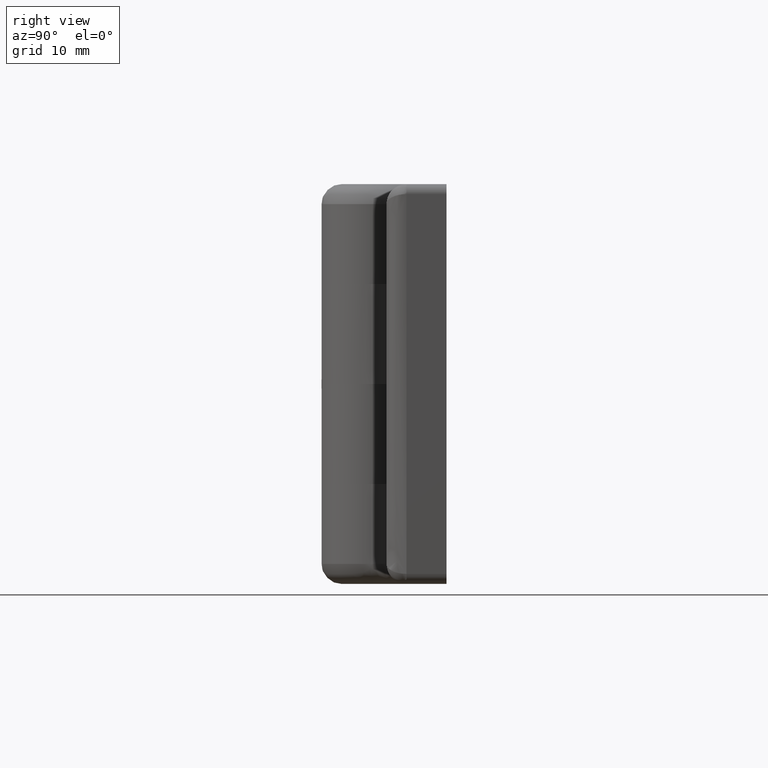
[diagram: clean part render]
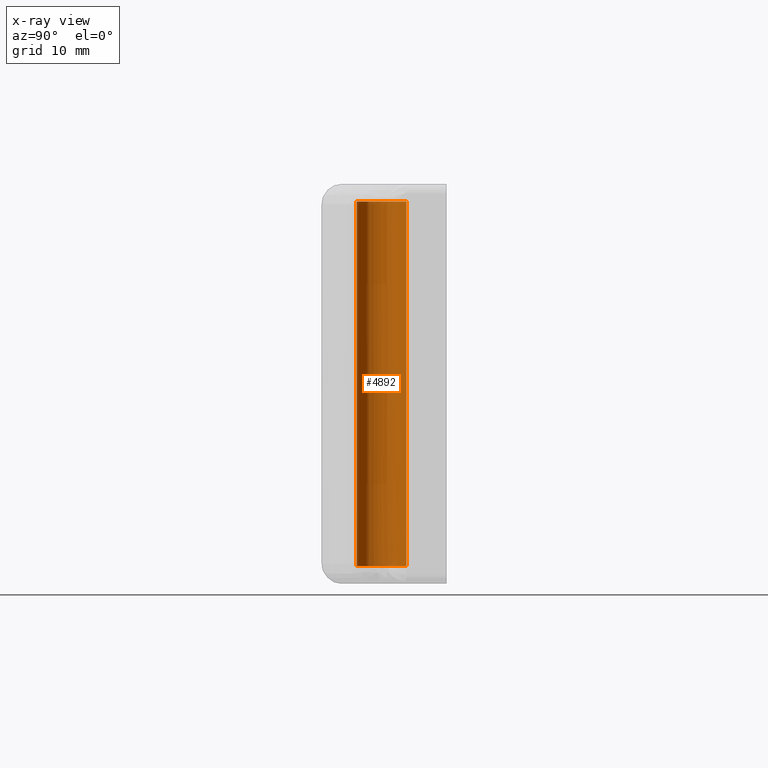
[diagram: x-ray — body ghosted, one internal face saturated and labeled with its STEP entity id]
A machine part, right view, then the same camera in x-ray: the body is ghosted and one INTERNAL B-rep face — a face not visible from any outside direction — is saturated and labeled: STEP entity #4892.
In plain terms, the highlighted face is a freeform B-spline surface patch.
Its self-contained STEP definition (entity closure, byte-faithful):
#4790=CARTESIAN_POINT('',(0.295085586641896,-2.482523815909166,39.162500000000009));
#4791=CARTESIAN_POINT('',(0.224036821594944,-2.490969038621514,39.162500000000009));
#4792=CARTESIAN_POINT('',(0.152621348837143,-2.495336996054667,39.162500000000009));
#4793=CARTESIAN_POINT('',(-2.342715647217524,-2.647958344891809,39.162500000000001));
#4794=CARTESIAN_POINT('',(-2.495336996054667,-0.152621348837143,39.162500000000009));
#4795=CARTESIAN_POINT('',(-2.647958344891809,2.342715647217524,39.162500000000001));
#4796=CARTESIAN_POINT('',(-0.152621348837143,2.495336996054667,39.162500000000009));
#4797=CARTESIAN_POINT('',(0.295085586641896,-2.482523815909166,0.814687499999920));
#4798=CARTESIAN_POINT('',(0.224036821594944,-2.490969038621514,0.814687499999920));
#4799=CARTESIAN_POINT('',(0.152621348837143,-2.495336996054667,0.814687499999920));
#4800=CARTESIAN_POINT('',(-2.342715647217524,-2.647958344891809,0.814687499999920));
#4801=CARTESIAN_POINT('',(-2.495336996054667,-0.152621348837143,0.814687499999920));
#4802=CARTESIAN_POINT('',(-2.647958344891809,2.342715647217524,0.814687499999920));
#4803=CARTESIAN_POINT('',(-0.152621348837143,2.495336996054667,0.814687499999920));
#4811=(BOUNDED_SURFACE()B_SPLINE_SURFACE(2,1,((#4790,#4797),(#4791,#4798),(#4792,#4799),(#4793,#4800),(#4794,#4801),(#4795,#4802),(#4796,#4803)),.UNSPECIFIED.,.F.,.F.,.U.)B_SPLINE_SURFACE_WITH_KNOTS((3,2,2,3),(2,2),(0.0,0.165685424949238,4.307821048680188,8.449956672411137),(0.0,38.347812500000103),.UNSPECIFIED.)GEOMETRIC_REPRESENTATION_ITEM()RATIONAL_B_SPLINE_SURFACE(((0.977505800795127,0.977505800795127),(0.988284271247462,0.988284271247462),(1.0,1.0),(0.707106781186548,0.707106781186548),(1.0,1.0),(0.707106781186548,0.707106781186548),(1.0,1.0)))REPRESENTATION_ITEM('')SURFACE());
#4812=CARTESIAN_POINT('',(0.295085586715337,-2.482523815900436,1.749999999999919));
#4813=VERTEX_POINT('',#4812);
#4814=CARTESIAN_POINT('',(-2.500000000000000,0.0,1.749999999999920));
#4815=VERTEX_POINT('',#4814);
#4816=CARTESIAN_POINT('',(0.295085586715337,-2.482523815900436,1.749999999999919));
#4817=CARTESIAN_POINT('',(0.148060299203993,-2.500000000000000,1.749999999999920));
#4818=CARTESIAN_POINT('',(0.0,-2.500000000000000,1.749999999999920));
#4819=CARTESIAN_POINT('',(-2.500000000000000,-2.500000000000000,1.749999999999921));
#4820=CARTESIAN_POINT('',(-2.500000000000000,0.0,1.749999999999920));
#4828=(BOUNDED_CURVE()B_SPLINE_CURVE(2,(#4816,#4817,#4818,#4819,#4820),.UNSPECIFIED.,.F.,.U.)B_SPLINE_CURVE_WITH_KNOTS((3,2,3),(0.229562473505645,0.250000000000000,0.500000000000000),.UNSPECIFIED.)CURVE()GEOMETRIC_REPRESENTATION_ITEM()RATIONAL_B_SPLINE_CURVE((0.956026754168287,0.976055948321932,1.0,0.707106781186548,1.0))REPRESENTATION_ITEM(''));
#4829=EDGE_CURVE('',#4813,#4815,#4828,.T.);
#4830=ORIENTED_EDGE('',*,*,#4829,.F.);
#4831=CARTESIAN_POINT('',(0.295085586715337,-2.482523815900436,38.250000000000000));
#4832=VERTEX_POINT('',#4831);
#4833=CARTESIAN_POINT('',(0.295085586715337,-2.482523815900436,38.250000000000000));
#4834=CARTESIAN_POINT('',(0.295085586715337,-2.482523815900436,1.749999999999919));
#4835=QUASI_UNIFORM_CURVE('',1,(#4833,#4834),.UNSPECIFIED.,.F.,.U.);
#4836=EDGE_CURVE('',#4832,#4813,#4835,.T.);
#4837=ORIENTED_EDGE('',*,*,#4836,.F.);
#4838=CARTESIAN_POINT('',(-2.500000000000000,0.0,38.250000000000000));
#4839=VERTEX_POINT('',#4838);
#4840=CARTESIAN_POINT('',(0.295085586715337,-2.482523815900436,38.250000000000000));
#4841=CARTESIAN_POINT('',(0.148060299203993,-2.500000000000000,38.250000000000007));
#4842=CARTESIAN_POINT('',(0.0,-2.500000000000000,38.250000000000000));
#4843=CARTESIAN_POINT('',(-2.500000000000000,-2.500000000000000,38.250000000000007));
#4844=CARTESIAN_POINT('',(-2.500000000000000,0.0,38.250000000000000));
#4852=(BOUNDED_CURVE()B_SPLINE_CURVE(2,(#4840,#4841,#4842,#4843,#4844),.UNSPECIFIED.,.F.,.U.)B_SPLINE_CURVE_WITH_KNOTS((3,2,3),(0.229562473505645,0.250000000000000,0.500000000000000),.UNSPECIFIED.)CURVE()GEOMETRIC_REPRESENTATION_ITEM()RATIONAL_B_SPLINE_CURVE((0.956026754168287,0.976055948321932,1.0,0.707106781186548,1.0))REPRESENTATION_ITEM(''));
#4853=EDGE_CURVE('',#4832,#4839,#4852,.T.);
#4854=ORIENTED_EDGE('',*,*,#4853,.T.);
#4855=CARTESIAN_POINT('',(-0.152619134337840,2.495337131497274,38.250000000000000));
#4856=VERTEX_POINT('',#4855);
#4857=CARTESIAN_POINT('',(-2.500000000000000,0.0,38.250000000000000));
#4858=CARTESIAN_POINT('',(-2.500000000000001,2.351767258250872,38.250000000000007));
#4859=CARTESIAN_POINT('',(-0.152619134337840,2.495337131497274,38.250000000000007));
#4867=(BOUNDED_CURVE()B_SPLINE_CURVE(2,(#4857,#4858,#4859),.UNSPECIFIED.,.F.,.U.)B_SPLINE_CURVE_WITH_KNOTS((3,3),(0.500000000000000,0.739333115369498),.UNSPECIFIED.)CURVE()GEOMETRIC_REPRESENTATION_ITEM()RATIONAL_B_SPLINE_CURVE((1.0,0.719603813883106,0.976072369854866))REPRESENTATION_ITEM(''));
#4868=EDGE_CURVE('',#4839,#4856,#4867,.T.);
#4869=ORIENTED_EDGE('',*,*,#4868,.T.);
#4870=CARTESIAN_POINT('',(-0.152619106598168,2.495337133193855,1.749999999999915));
#4871=VERTEX_POINT('',#4870);
#4872=CARTESIAN_POINT('',(-0.152619134337840,2.495337131497274,38.250000000000000));
#4873=CARTESIAN_POINT('',(-0.152619106598168,2.495337133193855,1.749999999999915));
#4874=QUASI_UNIFORM_CURVE('',1,(#4872,#4873),.UNSPECIFIED.,.F.,.U.);
#4875=EDGE_CURVE('',#4856,#4871,#4874,.T.);
#4876=ORIENTED_EDGE('',*,*,#4875,.T.);
#4877=CARTESIAN_POINT('',(-2.500000000000000,0.0,1.749999999999920));
#4878=CARTESIAN_POINT('',(-2.500000000000000,2.351767284443385,1.749999999999920));
#4879=CARTESIAN_POINT('',(-0.152619106598168,2.495337133193855,1.749999999999915));
#4887=(BOUNDED_CURVE()B_SPLINE_CURVE(2,(#4877,#4878,#4879),.UNSPECIFIED.,.F.,.U.)B_SPLINE_CURVE_WITH_KNOTS((3,3),(0.500000000000000,0.739333117287632),.UNSPECIFIED.)CURVE()GEOMETRIC_REPRESENTATION_ITEM()RATIONAL_B_SPLINE_CURVE((1.0,0.719603811635871,0.976072373965799))REPRESENTATION_ITEM(''));
#4888=EDGE_CURVE('',#4815,#4871,#4887,.T.);
#4889=ORIENTED_EDGE('',*,*,#4888,.F.);
#4890=EDGE_LOOP('',(#4830,#4837,#4854,#4869,#4876,#4889));
#4891=FACE_OUTER_BOUND('',#4890,.T.);
#4892=ADVANCED_FACE('',(#4891),#4811,.T.);